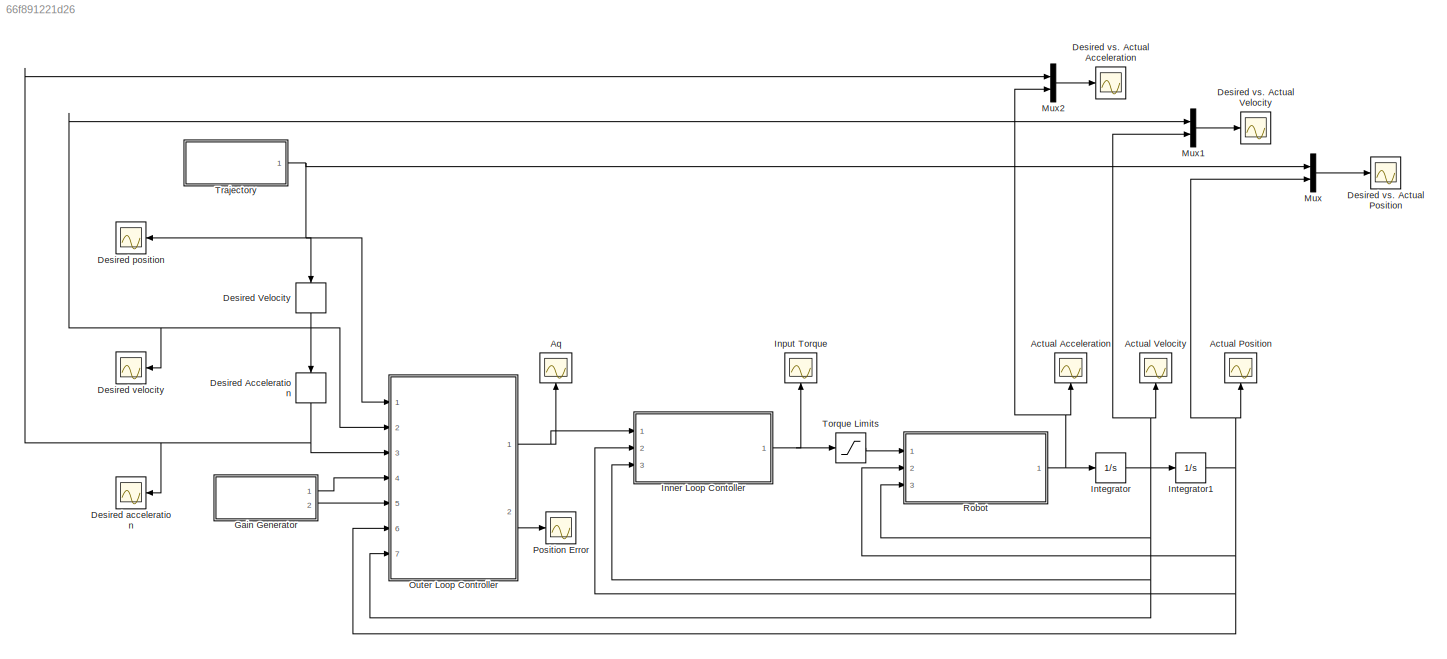
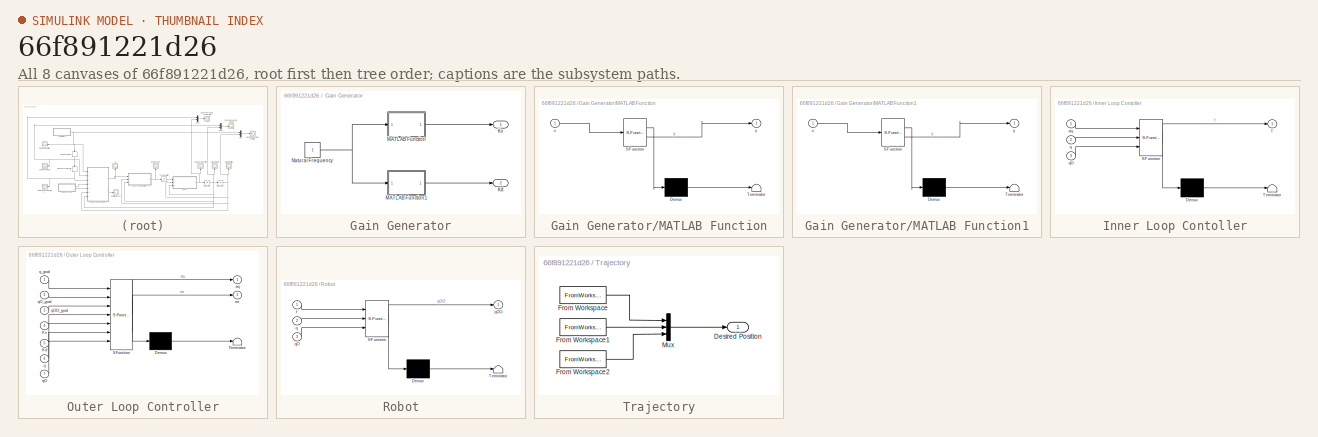
[diagram: thumbnail index - all 8 canvases of the model, root first then tree order]
MODEL slx_66f891221d26
KIND model
CONFIG AbsTol = auto
CONFIG EnableMultiTasking = off
CONFIG FixedStep = auto
CONFIG MaxStep = auto
CONFIG MinStep = auto
CONFIG RelTol = 1e-3
CONFIG SampleTimeConstraint = Unconstrained
CONFIG SolverName = FixedStepAuto
CONFIG StartTime = 0.0
CONFIG StopTime = 42
BLOCK [Scope] Actual Acceleration
  Floating = off
  NameLocation = top
  NumInputPorts = 1
  Ports = [1]
  ScopeSpecificationString = Simulink.scopes.TimeScopeBlockCfg('CurrentConfiguration', extmgr.ConfigurationSet(extmgr.Configuration('Core','General UI',true),extmgr.Configuration('Core','Source UI',true),extmgr.Configuration('Sources','WiredSimulink',true,'DataLoggingVariableName','ScopeData6'),extmgr.Configuration('Visuals','Time Domain',true,'SerializedDisplays',{struct('MinYLimReal','-19.7539','MaxYLimReal','67.75043','YLa...<+1390ch>
BLOCK [Scope] Actual Position
  Floating = off
  NameLocation = top
  NumInputPorts = 1
  Ports = [1]
  ScopeSpecificationString = Simulink.scopes.TimeScopeBlockCfg('CurrentConfiguration', extmgr.ConfigurationSet(extmgr.Configuration('Core','General UI',true),extmgr.Configuration('Core','Source UI',true),extmgr.Configuration('Sources','WiredSimulink',true,'DataLoggingVariableName','ScopeData8'),extmgr.Configuration('Visuals','Time Domain',true),extmgr.Configuration('Tools','Plot Navigation',true),extmgr.Configuration('Tools',...<+58ch>
BLOCK [Scope] Actual Velocity
  Floating = off
  NameLocation = top
  NumInputPorts = 1
  Ports = [1]
  ScopeSpecificationString = Simulink.scopes.TimeScopeBlockCfg('CurrentConfiguration', extmgr.ConfigurationSet(extmgr.Configuration('Core','General UI',true),extmgr.Configuration('Core','Source UI',true),extmgr.Configuration('Sources','WiredSimulink',true,'DataLoggingVariableName','ScopeData7'),extmgr.Configuration('Visuals','Time Domain',true),extmgr.Configuration('Tools','Plot Navigation',true),extmgr.Configuration('Tools',...<+58ch>
BLOCK [Scope] Aq
  Floating = off
  NameLocation = top
  NumInputPorts = 1
  Ports = [1]
  ScopeSpecificationString = Simulink.scopes.TimeScopeBlockCfg('CurrentConfiguration', extmgr.ConfigurationSet(extmgr.Configuration('Core','General UI',true),extmgr.Configuration('Core','Source UI',true),extmgr.Configuration('Sources','WiredSimulink',true,'DataLoggingVariableName','ScopeData4'),extmgr.Configuration('Visuals','Time Domain',true,'SerializedDisplays',{struct('MinYLimReal','-19.7539','MaxYLimReal','67.75043','YLa...<+1478ch>
BLOCK [Derivative] Desired Acceleration
  NameLocation = left
BLOCK [Derivative] Desired Velocity
  NameLocation = left
BLOCK [Scope] Desired acceleration
  Floating = off
  NumInputPorts = 1
  Ports = [1]
  ScopeSpecificationString = Simulink.scopes.TimeScopeBlockCfg('CurrentConfiguration', extmgr.ConfigurationSet(extmgr.Configuration('Core','General UI',true),extmgr.Configuration('Core','Source UI',true),extmgr.Configuration('Sources','WiredSimulink',true,'DataLoggingVariableName','ScopeData2'),extmgr.Configuration('Visuals','Time Domain',true,'SerializedDisplays',{struct('MinYLimReal','-5.98304','MaxYLimReal','4.25722','YLab...<+1462ch>
BLOCK [Scope] Desired position
  Floating = off
  NumInputPorts = 1
  Ports = [1]
  ScopeSpecificationString = Simulink.scopes.TimeScopeBlockCfg('CurrentConfiguration', extmgr.ConfigurationSet(extmgr.Configuration('Core','General UI',true),extmgr.Configuration('Core','Source UI',true),extmgr.Configuration('Sources','WiredSimulink',true),extmgr.Configuration('Visuals','Time Domain',true,'SerializedDisplays',{struct('MinYLimReal','-21.15631','MaxYLimReal','203.13706','YLabelReal','','MinYLimMag','0.00000','M...<+1402ch>
BLOCK [Scope] Desired velocity
  Floating = off
  NumInputPorts = 1
  Ports = [1]
  ScopeSpecificationString = Simulink.scopes.TimeScopeBlockCfg('CurrentConfiguration', extmgr.ConfigurationSet(extmgr.Configuration('Core','General UI',true),extmgr.Configuration('Core','Source UI',true),extmgr.Configuration('Sources','WiredSimulink',true,'DataLoggingVariableName','ScopeData1'),extmgr.Configuration('Visuals','Time Domain',true,'SerializedDisplays',{struct('MinYLimReal','-5.31127','MaxYLimReal','6.14567','YLab...<+1474ch>
BLOCK [Scope] Desired vs. Actual Acceleration
  Floating = off
  NameLocation = top
  NumInputPorts = 1
  Ports = [1]
  ScopeSpecificationString = Simulink.scopes.TimeScopeBlockCfg('CurrentConfiguration', extmgr.ConfigurationSet(extmgr.Configuration('Core','General UI',true),extmgr.Configuration('Core','Source UI',true),extmgr.Configuration('Sources','WiredSimulink',true,'DataLoggingVariableName','ScopeData11'),extmgr.Configuration('Visuals','Time Domain',true,'SerializedDisplays',{struct('MinYLimReal','-19.7539','MaxYLimReal','67.75043','YL...<+1497ch>
BLOCK [Scope] Desired vs. Actual Position
  Floating = off
  NameLocation = top
  NumInputPorts = 1
  Ports = [1]
  ScopeSpecificationString = Simulink.scopes.TimeScopeBlockCfg('CurrentConfiguration', extmgr.ConfigurationSet(extmgr.Configuration('Core','General UI',true),extmgr.Configuration('Core','Source UI',true),extmgr.Configuration('Sources','WiredSimulink',true,'DataLoggingVariableName','ScopeData9'),extmgr.Configuration('Visuals','Time Domain',true,'SerializedDisplays',{struct('MinYLimReal','-22.6405','MaxYLimReal','203.76449','YL...<+1488ch>
BLOCK [Scope] Desired vs. Actual Velocity
  Floating = off
  NameLocation = top
  NumInputPorts = 1
  Ports = [1]
  ScopeSpecificationString = Simulink.scopes.TimeScopeBlockCfg('CurrentConfiguration', extmgr.ConfigurationSet(extmgr.Configuration('Core','General UI',true),extmgr.Configuration('Core','Source UI',true),extmgr.Configuration('Sources','WiredSimulink',true,'DataLoggingVariableName','ScopeData10'),extmgr.Configuration('Visuals','Time Domain',true,'SerializedDisplays',{struct('MinYLimReal','-7.86968','MaxYLimReal','29.17136','YL...<+1500ch>
BLOCK [SubSystem] Gain Generator
  Ports = [0, 2]
  RequestExecContextInheritance = off
BLOCK [Outport] Gain Generator/Kd
  Port = 2
BLOCK [Outport] Gain Generator/Kv
BLOCK [SubSystem] Gain Generator/MATLAB Function
  ErrorFcn = Stateflow.Translate.translate
  PermitHierarchicalResolution = ExplicitOnly
  Ports = [1, 1]
  RequestExecContextInheritance = off
  SFBlockType = MATLAB Function
  TreatAsAtomicUnit = on
BLOCK [Demux] Gain Generator/MATLAB Function/ Demux 
  Outputs = 1
  Ports = [1, 1]
BLOCK [S-Function] Gain Generator/MATLAB Function/ SFunction 
  EnableBusSupport = on
  FunctionName = sf_sfun
  PortCounts = [1 2]
  Ports = [1, 2]
  SFcnIsStateOwnerBlock = off
  SFunctionDeploymentMode = off
  Tag = Stateflow S-Function 2
BLOCK [Terminator] Gain Generator/MATLAB Function/ Terminator 
BLOCK [Inport] Gain Generator/MATLAB Function/u
BLOCK [Outport] Gain Generator/MATLAB Function/y
BLOCK [SubSystem] Gain Generator/MATLAB Function1
  ErrorFcn = Stateflow.Translate.translate
  PermitHierarchicalResolution = ExplicitOnly
  Ports = [1, 1]
  RequestExecContextInheritance = off
  SFBlockType = MATLAB Function
  TreatAsAtomicUnit = on
BLOCK [Demux] Gain Generator/MATLAB Function1/ Demux 
  Outputs = 1
  Ports = [1, 1]
BLOCK [S-Function] Gain Generator/MATLAB Function1/ SFunction 
  EnableBusSupport = on
  FunctionName = sf_sfun
  PortCounts = [1 2]
  Ports = [1, 2]
  SFcnIsStateOwnerBlock = off
  SFunctionDeploymentMode = off
  Tag = Stateflow S-Function 1
BLOCK [Terminator] Gain Generator/MATLAB Function1/ Terminator 
BLOCK [Inport] Gain Generator/MATLAB Function1/u
BLOCK [Outport] Gain Generator/MATLAB Function1/y
BLOCK [Constant] Gain Generator/Natural Frequency
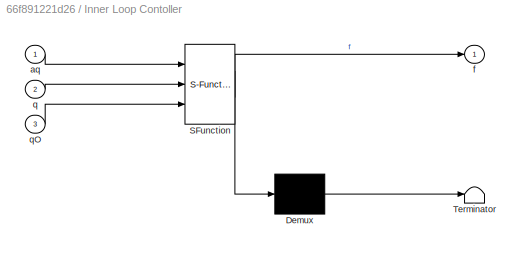
BLOCK [SubSystem] Inner Loop Contoller
  ErrorFcn = Stateflow.Translate.translate
  PermitHierarchicalResolution = ExplicitOnly
  Ports = [3, 1]
  RequestExecContextInheritance = off
  SFBlockType = MATLAB Function
  TreatAsAtomicUnit = on
BLOCK [Demux] Inner Loop Contoller/ Demux 
  Outputs = 1
  Ports = [1, 1]
BLOCK [S-Function] Inner Loop Contoller/ SFunction 
  EnableBusSupport = on
  FunctionName = sf_sfun
  PortCounts = [3 2]
  Ports = [3, 2]
  SFcnIsStateOwnerBlock = off
  SFunctionDeploymentMode = off
  Tag = Stateflow S-Function 4
BLOCK [Terminator] Inner Loop Contoller/ Terminator 
BLOCK [Inport] Inner Loop Contoller/aq
BLOCK [Outport] Inner Loop Contoller/f
BLOCK [Inport] Inner Loop Contoller/q
  Port = 2
BLOCK [Inport] Inner Loop Contoller/qO
  Port = 3
BLOCK [Scope] Input Torque
  Floating = off
  NameLocation = top
  NumInputPorts = 1
  Ports = [1]
  ScopeSpecificationString = Simulink.scopes.TimeScopeBlockCfg('CurrentConfiguration', extmgr.ConfigurationSet(extmgr.Configuration('Core','General UI',true),extmgr.Configuration('Core','Source UI',true),extmgr.Configuration('Sources','WiredSimulink',true,'DataLoggingVariableName','ScopeData5'),extmgr.Configuration('Visuals','Time Domain',true,'SerializedDisplays',{struct('MinYLimReal','-1317521.38459','MaxYLimReal','1147719....<+1508ch>
BLOCK [Integrator] Integrator
  InitialCondition = [0,0,0]
  Ports = [1, 1]
BLOCK [Integrator] Integrator1
  InitialCondition = [0,0,0]
  Ports = [1, 1]
BLOCK [Mux] Mux
  DisplayOption = bar
  Inputs = 2
  Ports = [2, 1]
BLOCK [Mux] Mux1
  DisplayOption = bar
  Inputs = 2
  Ports = [2, 1]
BLOCK [Mux] Mux2
  DisplayOption = bar
  Inputs = 2
  Ports = [2, 1]
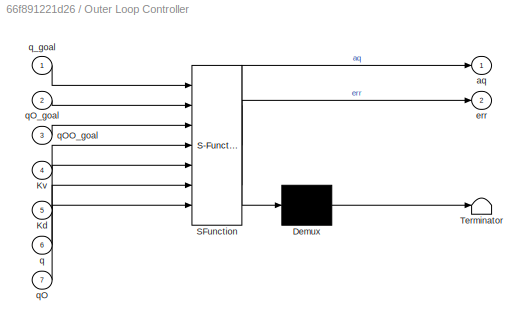
BLOCK [SubSystem] Outer Loop Controller
  ErrorFcn = Stateflow.Translate.translate
  PermitHierarchicalResolution = ExplicitOnly
  Ports = [7, 2]
  RequestExecContextInheritance = off
  SFBlockType = MATLAB Function
  TreatAsAtomicUnit = on
BLOCK [Demux] Outer Loop Controller/ Demux 
  Outputs = 1
  Ports = [1, 1]
BLOCK [S-Function] Outer Loop Controller/ SFunction 
  EnableBusSupport = on
  FunctionName = sf_sfun
  PortCounts = [7 3]
  Ports = [7, 3]
  SFcnIsStateOwnerBlock = off
  SFunctionDeploymentMode = off
  Tag = Stateflow S-Function 3
BLOCK [Terminator] Outer Loop Controller/ Terminator 
BLOCK [Inport] Outer Loop Controller/Kd
  Port = 5
BLOCK [Inport] Outer Loop Controller/Kv
  Port = 4
BLOCK [Outport] Outer Loop Controller/aq
BLOCK [Outport] Outer Loop Controller/err
  Port = 2
BLOCK [Inport] Outer Loop Controller/q
  Port = 6
BLOCK [Inport] Outer Loop Controller/qO
  Port = 7
BLOCK [Inport] Outer Loop Controller/qOO_goal
  Port = 3
BLOCK [Inport] Outer Loop Controller/qO_goal
  Port = 2
BLOCK [Inport] Outer Loop Controller/q_goal
BLOCK [Scope] Position Error
  Floating = off
  NumInputPorts = 1
  Ports = [1]
  ScopeSpecificationString = Simulink.scopes.TimeScopeBlockCfg('CurrentConfiguration', extmgr.ConfigurationSet(extmgr.Configuration('Core','General UI',true),extmgr.Configuration('Core','Source UI',true),extmgr.Configuration('Sources','WiredSimulink',true,'DataLoggingVariableName','ScopeData3'),extmgr.Configuration('Visuals','Time Domain',true,'SerializedDisplays',{struct('MinYLimReal','-8.70372','MaxYLimReal','66.52264','YLa...<+1481ch>
BLOCK [SubSystem] Robot
  ErrorFcn = Stateflow.Translate.translate
  PermitHierarchicalResolution = ExplicitOnly
  Ports = [3, 1]
  RequestExecContextInheritance = off
  SFBlockType = MATLAB Function
  TreatAsAtomicUnit = on
BLOCK [Demux] Robot/ Demux 
  Outputs = 1
  Ports = [1, 1]
BLOCK [S-Function] Robot/ SFunction 
  EnableBusSupport = on
  FunctionName = sf_sfun
  PortCounts = [3 2]
  Ports = [3, 2]
  SFcnIsStateOwnerBlock = off
  SFunctionDeploymentMode = off
  Tag = Stateflow S-Function 5
BLOCK [Terminator] Robot/ Terminator 
BLOCK [Inport] Robot/f
BLOCK [Inport] Robot/q
  Port = 2
BLOCK [Inport] Robot/qO
  Port = 3
BLOCK [Outport] Robot/qOO
BLOCK [Saturate] Torque Limits
  LowerLimit = -4000000
  NameLocation = top
  UpperLimit = 4000000
BLOCK [SubSystem] Trajectory
  Ports = [0, 1]
  RequestExecContextInheritance = off
BLOCK [Outport] Trajectory/Desired Position
BLOCK [FromWorkspace] Trajectory/From Workspace
  VariableName = joint1Data
BLOCK [FromWorkspace] Trajectory/From Workspace1
  VariableName = joint2Data
BLOCK [FromWorkspace] Trajectory/From Workspace2
  VariableName = joint3Data
BLOCK [Mux] Trajectory/Mux
  DisplayOption = bar
  Inputs = 3
  Ports = [3, 1]
NET Desired Acceleration:1 -> Desired acceleration:1, Mux2:1, Outer Loop Controller:3
NET Desired Velocity:1 -> Desired Acceleration:1, Desired velocity:1, Mux1:1, Outer Loop Controller:2
LINE Gain Generator/MATLAB Function1:1 -> Gain Generator/Kd:1
LINE Gain Generator/MATLAB Function:1 -> Gain Generator/Kv:1
NET Gain Generator/Natural Frequency:1 -> Gain Generator/MATLAB Function1:1, Gain Generator/MATLAB Function:1
LINE Gain Generator:1 -> Outer Loop Controller:4
LINE Gain Generator:2 -> Outer Loop Controller:5
NET Inner Loop Contoller:1 -> Input Torque:1, Torque Limits:1
NET Integrator1:1 -> Actual Position:1, Inner Loop Contoller:2, Mux:2, Outer Loop Controller:6, Robot:2
NET Integrator:1 -> Actual Velocity:1, Inner Loop Contoller:3, Integrator1:1, Mux1:2, Outer Loop Controller:7, Robot:3
LINE Mux1:1 -> Desired vs. Actual Velocity:1
LINE Mux2:1 -> Desired vs. Actual Acceleration:1
LINE Mux:1 -> Desired vs. Actual Position:1
NET Outer Loop Controller:1 -> Aq:1, Inner Loop Contoller:1
LINE Outer Loop Controller:2 -> Position Error:1
NET Robot:1 -> Actual Acceleration:1, Integrator:1, Mux2:2
LINE Torque Limits:1 -> Robot:1
LINE Trajectory/From Workspace1:1 -> Trajectory/Mux:2
LINE Trajectory/From Workspace2:1 -> Trajectory/Mux:3
LINE Trajectory/From Workspace:1 -> Trajectory/Mux:1
LINE Trajectory/Mux:1 -> Trajectory/Desired Position:1
NET Trajectory:1 -> Desired Velocity:1, Desired position:1, Mux:1, Outer Loop Controller:1
note: NET lines group one-source signal fan-out (src -> all destinations, sorted); 1:1 wires keep LINE
CHART Gain Generator/MATLAB Function1 states=1 transitions=1
  STATE_LABEL 'eML_blk_kernel()'
  STATE_LABEL 'SCRIPT:\nfunction y = K0matrix(u)\n%K0matrix calculates the K0 gain matrix given the user specified natural\n%frequency\n\n%y = K0matrix(u) where u is the inputted user-specified natural frequency\n%scalar and y is the outputted K0 gain matrix\n\n    y = [u*u, 0, 0;\n         0, u*u, 0;\n         0, 0, u*u];\n    \nend'
CHART Gain Generator/MATLAB Function states=1 transitions=1
  STATE_LABEL 'eML_blk_kernel()'
  STATE_LABEL 'SCRIPT:\nfunction y = K1matrix(u)\n%K1matrix calculates the K1 gain matrix given the user specified natural\n%frequency\n\n%y = K1matrix(u) where u is the inputted user-specified natural frequency\n%scalar and y is the outputted K1 gain matrix\n\n    y = [2*u, 0, 0;\n         0, 2*u, 0;\n         0, 0, 2*u];\n    \nend'
CHART Outer Loop Controller states=1 transitions=1
  STATE_LABEL 'eML_blk_kernel()'
  STATE_LABEL 'SCRIPT:\nfunction [aq, err] = outerLoopController(q_goal, qO_goal, qOO_goal, Kv, Kd, q, qO)\n%outerLoopController calculates inverse dynamics controller aq component\n\n%[aq, err] = outerLoopController(q_goal, qO_goal, qOO_goal, q, qO, Kv, Kd)\n%where q_goal, qO_goal, and qOO_goal are input 3x1 column vectors of the\n%respective desired position, velocity, and acceleration of the manipulator\n%joints in ...<+726ch>'
CHART Inner Loop Contoller states=1 transitions=1
  STATE_LABEL 'eML_blk_kernel()'
  STATE_LABEL 'SCRIPT:\nfunction f = innerLoopController(aq, q, qO)\n%innerLoopController calculates reRACKer inverse dynamics\n\n%f = innerLoopController(aq, q, qO) where aq is an input 3x1 column vector\n%of the outer-loop controller output, q and qO are input 3x1 column vectors\n%of the respective actual joint position and velocity of the manipulator,\n%and f is an output 3x1 column vector of the resulting torque co...<+156ch>'
CHART Robot states=1 transitions=1
  STATE_LABEL 'eML_blk_kernel()'
  STATE_LABEL 'SCRIPT:\nfunction qOO = forwardDynamics(f, q, qO)\n%forwardDynamics calculates reRACKer forward dynamics\n\n%qOO = forwardDynamics(f, q, qO) where f is an input 3x1 column vector of\n%the torque commanded to the manipulator, q and qO are input 3x1 column\n%vectors of the respective actual joint position and velocity of the\n%manipulator, and qOO is an output 3x1 column vector of the actual joint\n%acceler...<+3608ch>'
CHART  states=0 transitions=0
CHART  states=0 transitions=0
CHART  states=0 transitions=0
CHART  states=0 transitions=0
CHART  states=0 transitions=0
